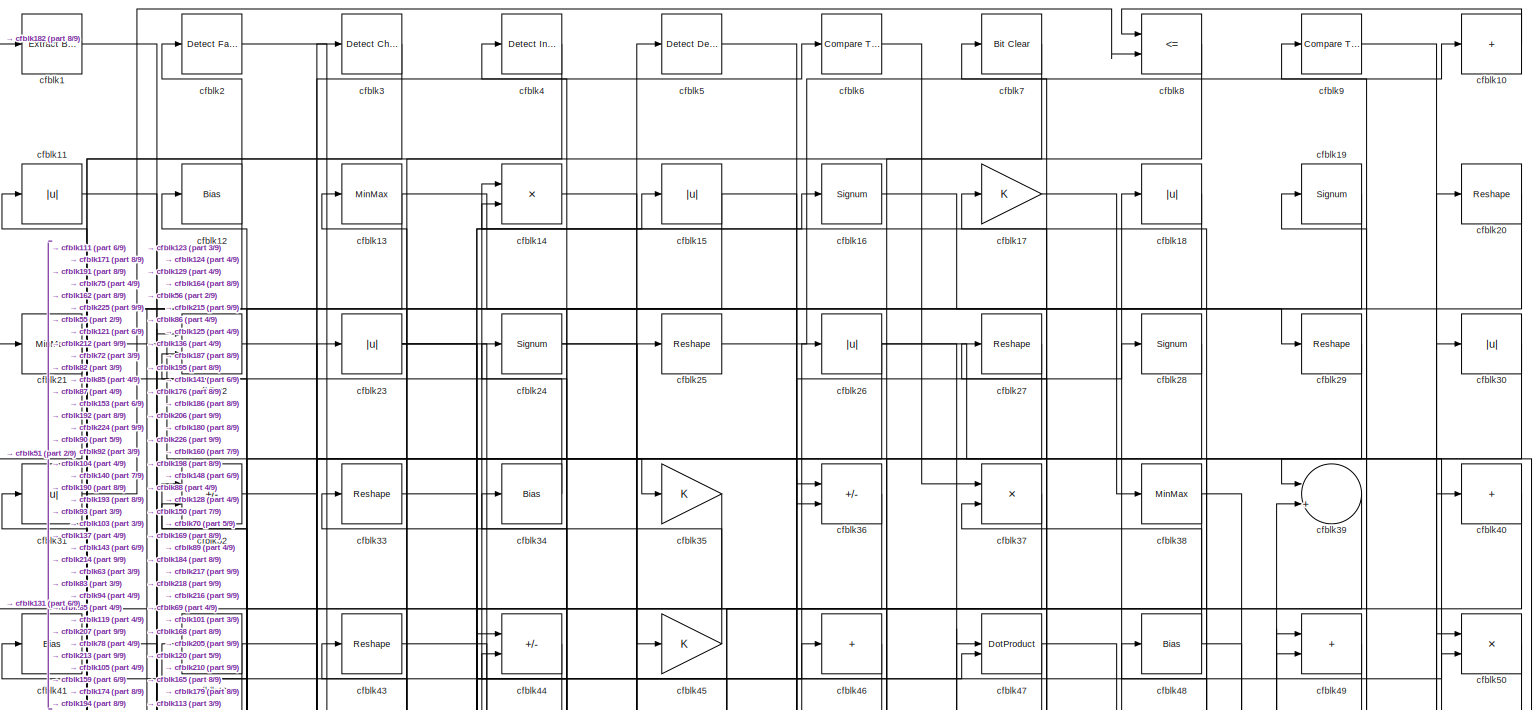
[diagram: root canvas - part 1/9, full width, top band]
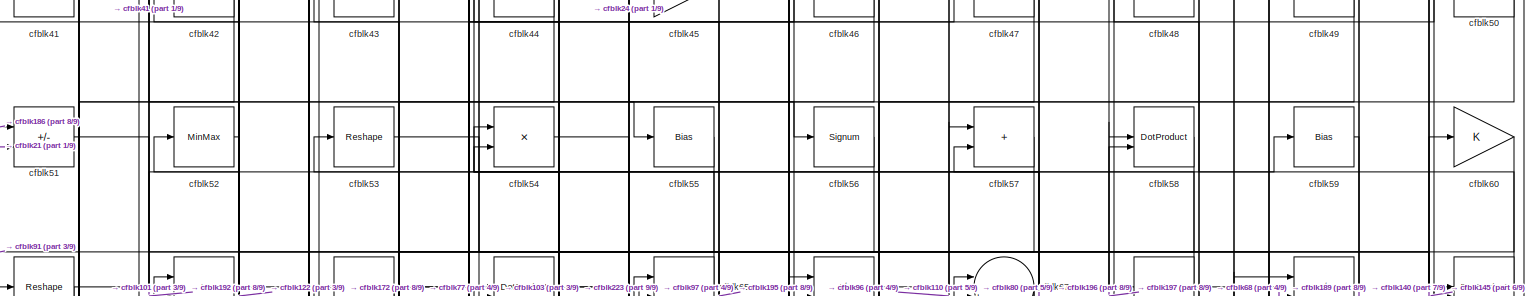
[diagram: root canvas - part 2/9, full width, top band]
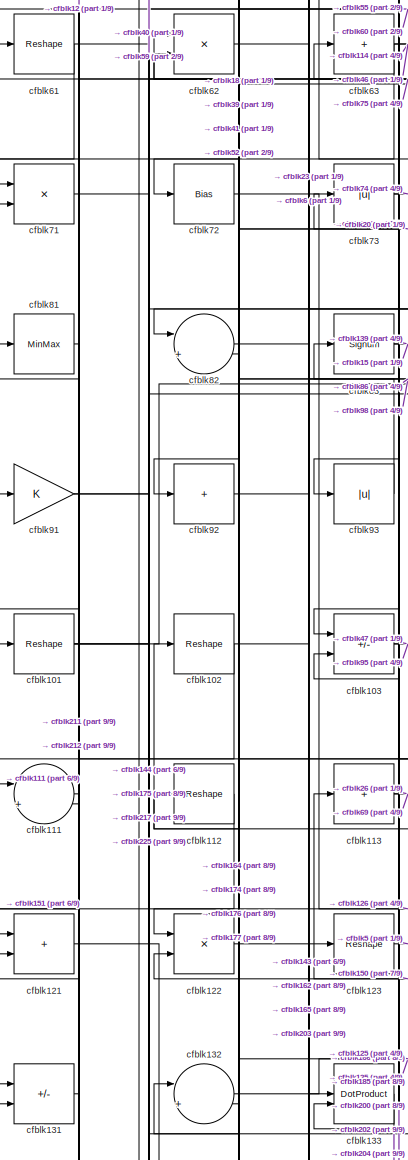
[diagram: root canvas - part 3/9, middle left region]
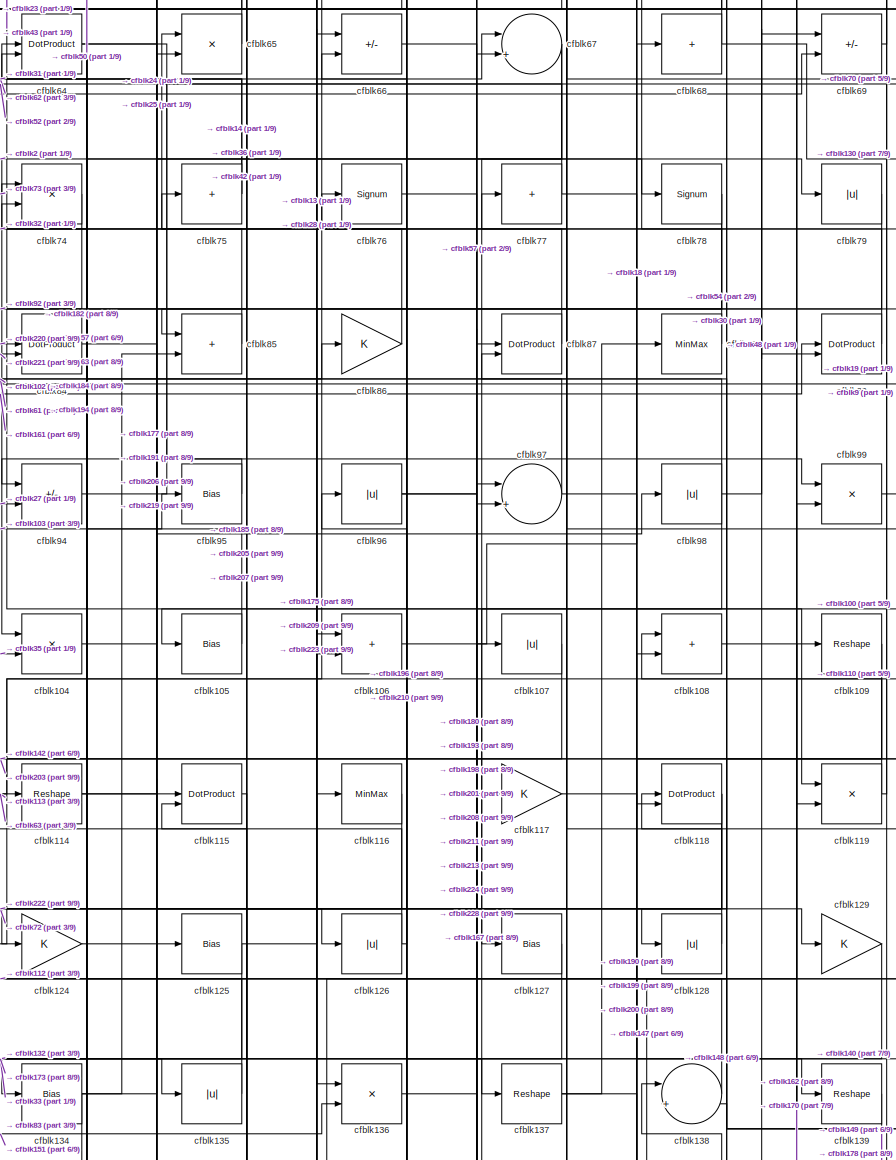
[diagram: root canvas - part 4/9, central region]
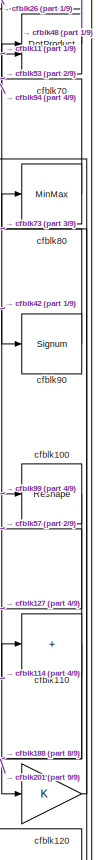
[diagram: root canvas - part 5/9, middle right region]
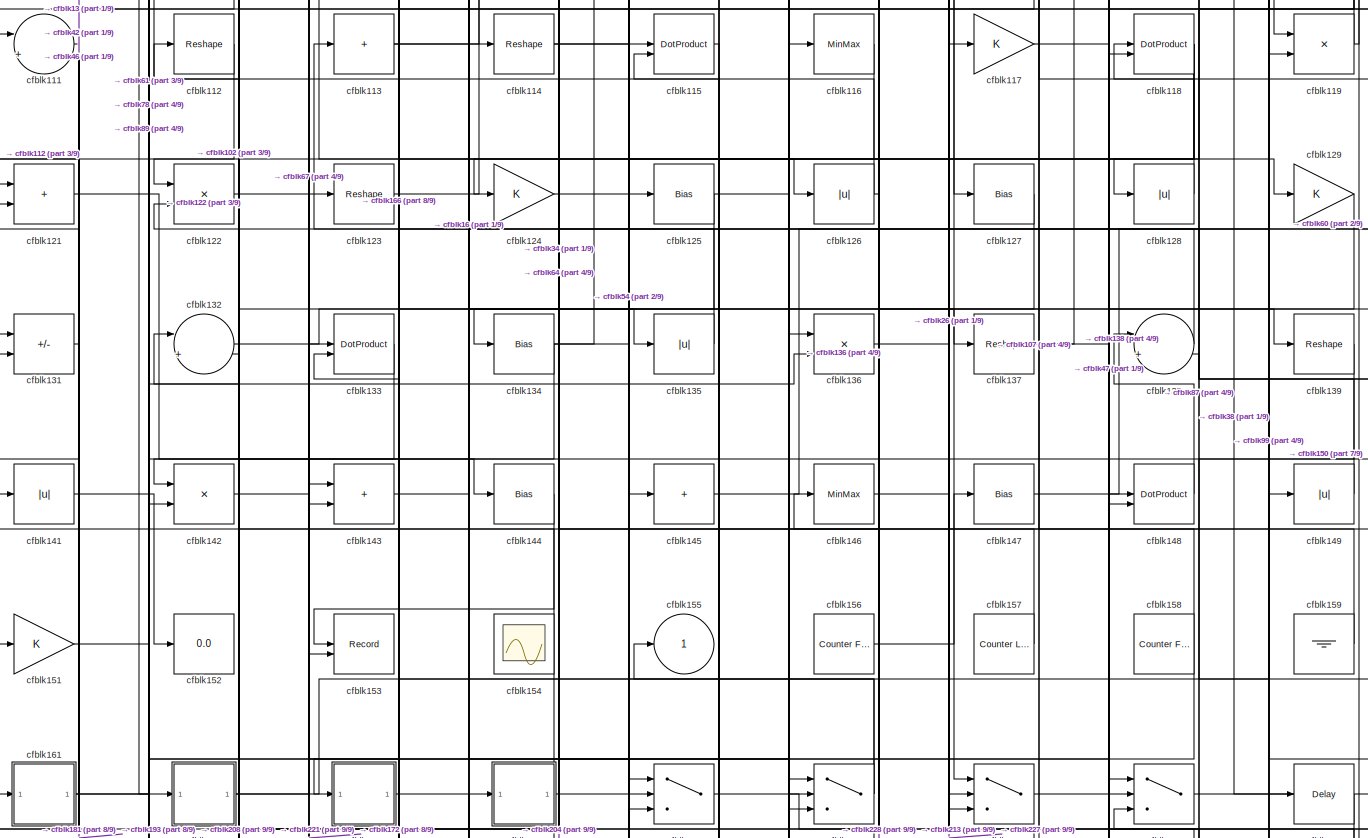
[diagram: root canvas - part 6/9, full width, middle band]
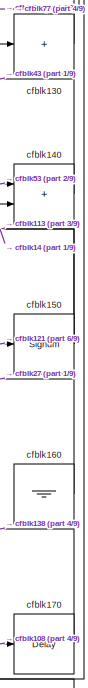
[diagram: root canvas - part 7/9, middle right region]
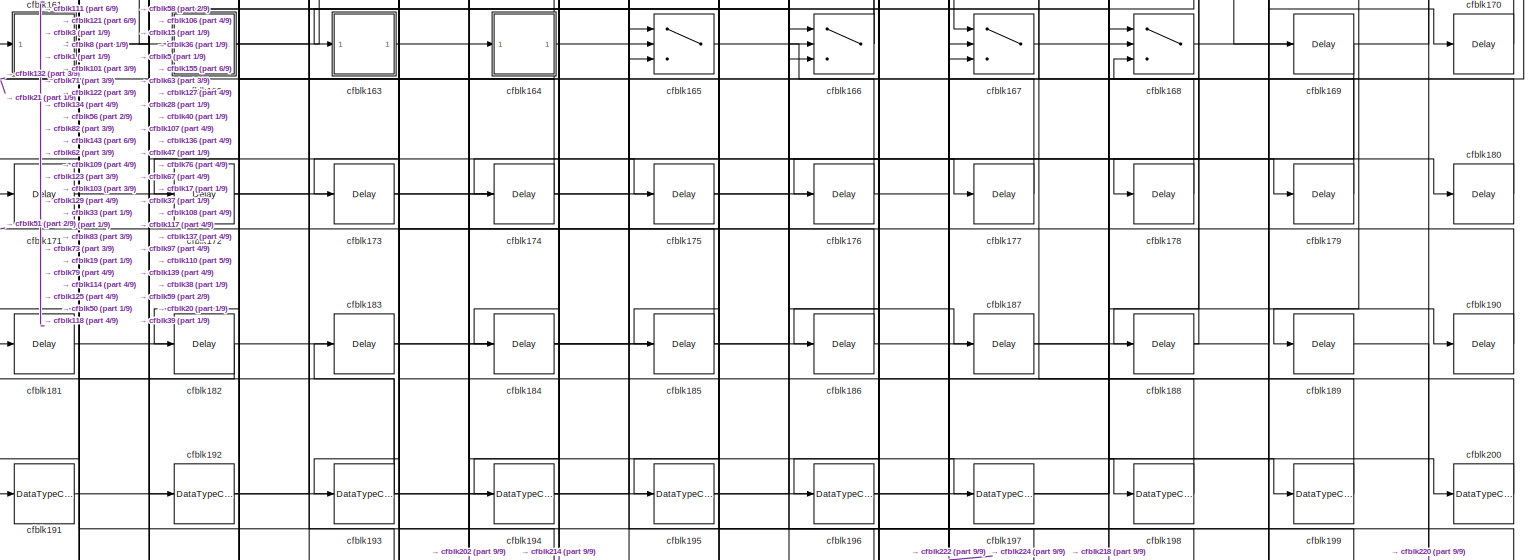
[diagram: root canvas - part 8/9, full width, bottom band]
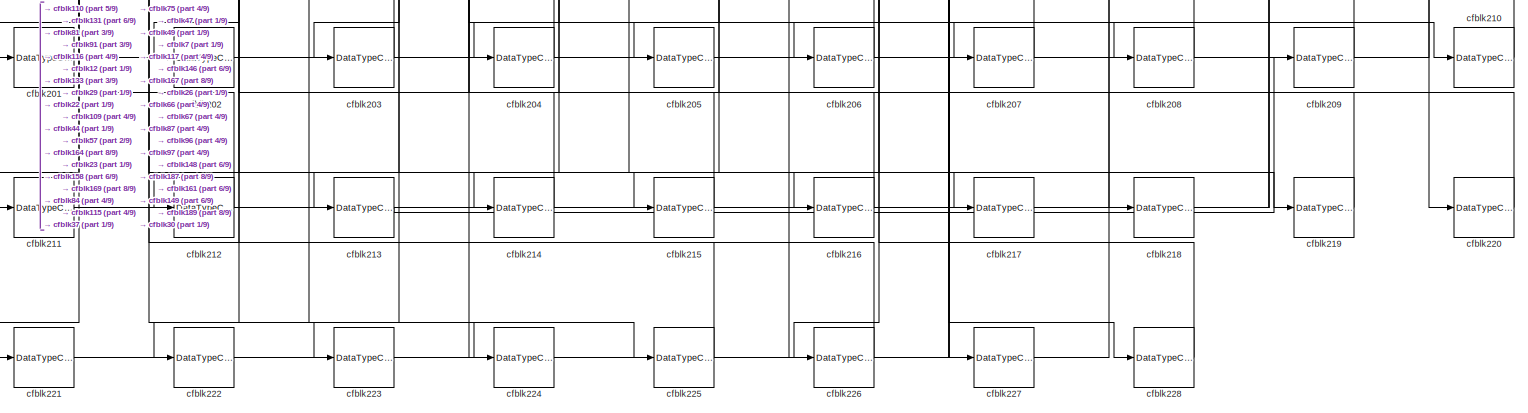
[diagram: root canvas - part 9/9, full width, bottom band]
MODEL slx_664d89747934
KIND model
CONFIG AbsTol = auto
CONFIG EnableMultiTasking = off
CONFIG FixedStep = auto
CONFIG MaxStep = auto
CONFIG MinStep = auto
CONFIG RelTol = 1e-3
CONFIG SampleTimeConstraint = Unconstrained
CONFIG SolverName = VariableStepAuto
CONFIG StartTime = 0.0
CONFIG StopTime = 10.0
BLOCK [Reference] cfblk1  REF=simulink/Logic and Bit
Operations/Extract Bits
  LibrarySourceBlock = hdlsllib/Logic and Bit\nOperations/Extract Bits
  SourceBlock = simulink/Logic and Bit\nOperations/Extract Bits
  SourceType = Extract Bits
BLOCK [Sum] cfblk10
  IconShape = rectangular
  Inputs = +
BLOCK [Reshape] cfblk100
BLOCK [Reshape] cfblk101
BLOCK [Reshape] cfblk102
BLOCK [Sum] cfblk103
  IconShape = rectangular
  Inputs = +-
BLOCK [Product] cfblk104
  Inputs = */
  RndMeth = Zero
  SaturateOnIntegerOverflow = on
BLOCK [Bias] cfblk105
  Bias = 0.0
  SaturateOnIntegerOverflow = off
BLOCK [Sum] cfblk106
  IconShape = rectangular
BLOCK [Abs] cfblk107
  SaturateOnIntegerOverflow = off
BLOCK [Sum] cfblk108
  IconShape = rectangular
BLOCK [Reshape] cfblk109
BLOCK [Abs] cfblk11
  SaturateOnIntegerOverflow = off
BLOCK [Sum] cfblk110
  IconShape = rectangular
  Inputs = +
BLOCK [Sum] cfblk111
  Inputs = |++
BLOCK [Reshape] cfblk112
BLOCK [Sum] cfblk113
  IconShape = rectangular
  Inputs = +
BLOCK [Reshape] cfblk114
BLOCK [DotProduct] cfblk115
  OutDataTypeStr = Inherit: Inherit via internal rule
BLOCK [MinMax] cfblk116
BLOCK [Gain] cfblk117
BLOCK [DotProduct] cfblk118
  OutDataTypeStr = Inherit: Inherit via internal rule
BLOCK [Product] cfblk119
  Inputs = */
  RndMeth = Zero
  SaturateOnIntegerOverflow = on
BLOCK [Bias] cfblk12
  Bias = 0.0
  SaturateOnIntegerOverflow = off
BLOCK [Gain] cfblk120
BLOCK [Sum] cfblk121
  IconShape = rectangular
BLOCK [Product] cfblk122
  Inputs = */
  RndMeth = Zero
  SaturateOnIntegerOverflow = on
BLOCK [Reshape] cfblk123
BLOCK [Gain] cfblk124
BLOCK [Bias] cfblk125
  Bias = 0.0
  SaturateOnIntegerOverflow = off
BLOCK [Abs] cfblk126
  SaturateOnIntegerOverflow = off
BLOCK [Bias] cfblk127
  Bias = 0.0
  SaturateOnIntegerOverflow = off
BLOCK [Abs] cfblk128
  SaturateOnIntegerOverflow = off
BLOCK [Gain] cfblk129
BLOCK [MinMax] cfblk13
BLOCK [Sum] cfblk130
  IconShape = rectangular
  Inputs = +
BLOCK [Sum] cfblk131
  IconShape = rectangular
  Inputs = +-
BLOCK [Sum] cfblk132
  Inputs = |++
BLOCK [DotProduct] cfblk133
  OutDataTypeStr = Inherit: Inherit via internal rule
BLOCK [Bias] cfblk134
  Bias = 0.0
  SaturateOnIntegerOverflow = off
BLOCK [Abs] cfblk135
  SaturateOnIntegerOverflow = off
BLOCK [Product] cfblk136
  Inputs = */
  RndMeth = Zero
  SaturateOnIntegerOverflow = on
BLOCK [Reshape] cfblk137
BLOCK [Sum] cfblk138
  Inputs = |++
BLOCK [Reshape] cfblk139
BLOCK [Product] cfblk14
  Inputs = */
  RndMeth = Zero
  SaturateOnIntegerOverflow = on
BLOCK [Sum] cfblk140
  IconShape = rectangular
BLOCK [Abs] cfblk141
  SaturateOnIntegerOverflow = off
BLOCK [Product] cfblk142
  Inputs = */
  RndMeth = Zero
  SaturateOnIntegerOverflow = on
BLOCK [Sum] cfblk143
  IconShape = rectangular
BLOCK [Bias] cfblk144
  Bias = 0.0
  SaturateOnIntegerOverflow = off
BLOCK [Sum] cfblk145
  IconShape = rectangular
  Inputs = +
BLOCK [MinMax] cfblk146
BLOCK [Bias] cfblk147
  Bias = 0.0
  SaturateOnIntegerOverflow = off
BLOCK [DotProduct] cfblk148
  OutDataTypeStr = Inherit: Inherit via internal rule
BLOCK [Abs] cfblk149
  SaturateOnIntegerOverflow = off
BLOCK [Abs] cfblk15
  SaturateOnIntegerOverflow = off
BLOCK [Signum] cfblk150
BLOCK [Gain] cfblk151
BLOCK [Display] cfblk152
  Decimation = 1
BLOCK [Record] cfblk153
  CompatibilityTag = XY
  FileSettingsInternal = {"entries":[{"content":{"excelSettings":{"content":{},"type":"Streamout.ExcelSettings"}},"type":"Streamout.FileSettingStorage","uuid":""}],"packageUris":["http:\/\/schema.mathworks.com\/mf0\/streamout_blocks\/R2020a"],"version":"1.0"}
  Layout = [1 1]
  SignalsInternal = {"entries":[{"content":{"signals":[{"content":{"blockPath":[],"dimensions":[1],"domain":"","lineColor":"#a2142f","plots":[1],"port":1,"signalID":2764,"signalName":"XY Graph:1"},"type":"RecordBlkView.Signal","uuid":""},{"content":{"blockPath":[],"dimensions":[1],"domain":"","lineColor":"#139fff","plots":[1],"port":2,"signalID":2767,"signalName":"XY Graph:2"},"type":"RecordBlkView.Signal","uuid":""}...<+146ch>
  VisualizationBindings = {"xyplotplugin":{"info":[{"series":[{"bindingParametersList":[{"parameter":"X-Axis","signalID":2764,"signalName":"XY Graph:1"},{"parameter":"Y-Axis","signalID":2767,"signalName":"XY Graph:2"}],"seriesID":48167}],"subplotID":1}]}}
  st = -1
BLOCK [Scope] cfblk154
  Floating = on
  NumInputPorts = 1
  ScopeSpecificationString = Simulink.scopes.TimeScopeBlockCfg('CurrentConfiguration', extmgr.ConfigurationSet(extmgr.Configuration('Core','General UI',true,'FigureColor',[0.156862745098039 0.156862745098039 0.156862745098039]),extmgr.Configuration('Core','Source UI',true),extmgr.Configuration('Sources','WiredSimulink',true,'DataLoggingVariableName','ScopeData1','DataLoggingSaveFormat','StructureWithTime','DataLoggingLimitDat...<+2713ch>
BLOCK [Outport] cfblk155
  VectorParamsAs1DForOutWhenUnconnected = off
BLOCK [Reference] cfblk156  REF=hdlsllib/Sources/Counter
Free-Running
  SourceBlock = hdlsllib/Sources/Counter\nFree-Running
  SourceType = Counter Free-Running
BLOCK [Reference] cfblk157  REF=hdlsllib/Sources/Counter
Limited
  SourceBlock = hdlsllib/Sources/Counter\nLimited
  SourceType = Counter Limited
BLOCK [Reference] cfblk158  REF=hdlsllib/Sources/Counter
Free-Running
  SourceBlock = hdlsllib/Sources/Counter\nFree-Running
  SourceType = Counter Free-Running
BLOCK [Ground] cfblk159
BLOCK [Signum] cfblk16
BLOCK [Ground] cfblk160
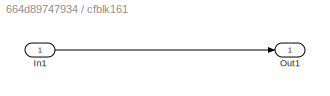
BLOCK [SubSystem] cfblk161
  LibrarySourceBlock = hdlsllib/Ports &\nSubsystems/Subsystem
BLOCK [Inport] cfblk161/In1
BLOCK [Outport] cfblk161/Out1
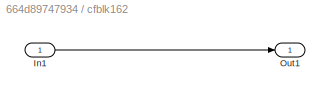
BLOCK [SubSystem] cfblk162
  LibrarySourceBlock = hdlsllib/Ports &\nSubsystems/Subsystem
BLOCK [Inport] cfblk162/In1
BLOCK [Outport] cfblk162/Out1
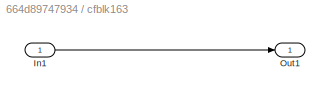
BLOCK [SubSystem] cfblk163
  LibrarySourceBlock = hdlsllib/Ports &\nSubsystems/Subsystem
BLOCK [Inport] cfblk163/In1
BLOCK [Outport] cfblk163/Out1
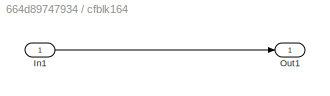
BLOCK [SubSystem] cfblk164
  LibrarySourceBlock = hdlsllib/Ports &\nSubsystems/Subsystem
BLOCK [Inport] cfblk164/In1
BLOCK [Outport] cfblk164/Out1
BLOCK [Switch] cfblk165
  InputSameDT = off
  SaturateOnIntegerOverflow = off
BLOCK [Switch] cfblk166
  InputSameDT = off
  SaturateOnIntegerOverflow = off
BLOCK [Switch] cfblk167
  InputSameDT = off
  SaturateOnIntegerOverflow = off
BLOCK [Switch] cfblk168
  InputSameDT = off
  SaturateOnIntegerOverflow = off
BLOCK [Delay] cfblk169
  InputPortMap = u0
  SampleTime = 1
BLOCK [Gain] cfblk17
BLOCK [Delay] cfblk170
  InputPortMap = u0
  SampleTime = 1
BLOCK [Delay] cfblk171
  InputPortMap = u0
  SampleTime = 1
BLOCK [Delay] cfblk172
  InputPortMap = u0
  SampleTime = 1
BLOCK [Delay] cfblk173
  InputPortMap = u0
  SampleTime = 1
BLOCK [Delay] cfblk174
  InputPortMap = u0
  SampleTime = 1
BLOCK [Delay] cfblk175
  InputPortMap = u0
  SampleTime = 1
BLOCK [Delay] cfblk176
  InputPortMap = u0
  SampleTime = 1
BLOCK [Delay] cfblk177
  InputPortMap = u0
  SampleTime = 1
BLOCK [Delay] cfblk178
  InputPortMap = u0
  SampleTime = 1
BLOCK [Delay] cfblk179
  InputPortMap = u0
  SampleTime = 1
BLOCK [Abs] cfblk18
  SaturateOnIntegerOverflow = off
BLOCK [Delay] cfblk180
  InputPortMap = u0
  SampleTime = 1
BLOCK [Delay] cfblk181
  InputPortMap = u0
  SampleTime = 1
BLOCK [Delay] cfblk182
  InputPortMap = u0
  SampleTime = 1
BLOCK [Delay] cfblk183
  InputPortMap = u0
  SampleTime = 1
BLOCK [Delay] cfblk184
  InputPortMap = u0
  SampleTime = 1
BLOCK [Delay] cfblk185
  InputPortMap = u0
  SampleTime = 1
BLOCK [Delay] cfblk186
  InputPortMap = u0
  SampleTime = 1
BLOCK [Delay] cfblk187
  InputPortMap = u0
  SampleTime = 1
BLOCK [Delay] cfblk188
  InputPortMap = u0
  SampleTime = 1
BLOCK [Delay] cfblk189
  InputPortMap = u0
  SampleTime = 1
BLOCK [Signum] cfblk19
BLOCK [Delay] cfblk190
  InputPortMap = u0
  SampleTime = 1
BLOCK [DataTypeConversion] cfblk191
  OutDataTypeStr = uint8
  RndMeth = Floor
  SaturateOnIntegerOverflow = off
BLOCK [DataTypeConversion] cfblk192
  OutDataTypeStr = uint8
  RndMeth = Floor
  SaturateOnIntegerOverflow = off
BLOCK [DataTypeConversion] cfblk193
  RndMeth = Floor
  SaturateOnIntegerOverflow = off
BLOCK [DataTypeConversion] cfblk194
  OutDataTypeStr = uint8
  RndMeth = Floor
  SaturateOnIntegerOverflow = off
BLOCK [DataTypeConversion] cfblk195
  OutDataTypeStr = uint8
  RndMeth = Floor
  SaturateOnIntegerOverflow = off
BLOCK [DataTypeConversion] cfblk196
  OutDataTypeStr = uint8
  RndMeth = Floor
  SaturateOnIntegerOverflow = off
BLOCK [DataTypeConversion] cfblk197
  OutDataTypeStr = uint8
  RndMeth = Floor
  SaturateOnIntegerOverflow = off
BLOCK [DataTypeConversion] cfblk198
  OutDataTypeStr = uint8
  RndMeth = Floor
  SaturateOnIntegerOverflow = off
BLOCK [DataTypeConversion] cfblk199
  OutDataTypeStr = uint8
  RndMeth = Floor
  SaturateOnIntegerOverflow = off
BLOCK [Reference] cfblk2  REF=hdlsllib/Logic and Bit
Operations/Detect Fall
Nonpositive
  SourceBlock = hdlsllib/Logic and Bit\nOperations/Detect Fall\nNonpositive
  SourceType = Detect Fall Nonpositive
BLOCK [Reshape] cfblk20
BLOCK [DataTypeConversion] cfblk200
  OutDataTypeStr = uint8
  RndMeth = Floor
  SaturateOnIntegerOverflow = off
BLOCK [DataTypeConversion] cfblk201
  OutDataTypeStr = uint8
  RndMeth = Floor
  SaturateOnIntegerOverflow = off
BLOCK [DataTypeConversion] cfblk202
  OutDataTypeStr = uint8
  RndMeth = Floor
  SaturateOnIntegerOverflow = off
BLOCK [DataTypeConversion] cfblk203
  OutDataTypeStr = uint8
  RndMeth = Floor
  SaturateOnIntegerOverflow = off
BLOCK [DataTypeConversion] cfblk204
  OutDataTypeStr = uint8
  RndMeth = Floor
  SaturateOnIntegerOverflow = off
BLOCK [DataTypeConversion] cfblk205
  OutDataTypeStr = uint8
  RndMeth = Floor
  SaturateOnIntegerOverflow = off
BLOCK [DataTypeConversion] cfblk206
  OutDataTypeStr = uint8
  RndMeth = Floor
  SaturateOnIntegerOverflow = off
BLOCK [DataTypeConversion] cfblk207
  OutDataTypeStr = uint8
  RndMeth = Floor
  SaturateOnIntegerOverflow = off
BLOCK [DataTypeConversion] cfblk208
  OutDataTypeStr = uint8
  RndMeth = Floor
  SaturateOnIntegerOverflow = off
BLOCK [DataTypeConversion] cfblk209
  OutDataTypeStr = uint8
  RndMeth = Floor
  SaturateOnIntegerOverflow = off
BLOCK [MinMax] cfblk21
BLOCK [DataTypeConversion] cfblk210
  OutDataTypeStr = uint8
  RndMeth = Floor
  SaturateOnIntegerOverflow = off
BLOCK [DataTypeConversion] cfblk211
  OutDataTypeStr = uint8
  RndMeth = Floor
  SaturateOnIntegerOverflow = off
BLOCK [DataTypeConversion] cfblk212
  OutDataTypeStr = uint8
  RndMeth = Floor
  SaturateOnIntegerOverflow = off
BLOCK [DataTypeConversion] cfblk213
  RndMeth = Floor
  SaturateOnIntegerOverflow = off
BLOCK [DataTypeConversion] cfblk214
  OutDataTypeStr = uint8
  RndMeth = Floor
  SaturateOnIntegerOverflow = off
BLOCK [DataTypeConversion] cfblk215
  OutDataTypeStr = uint8
  RndMeth = Floor
  SaturateOnIntegerOverflow = off
BLOCK [DataTypeConversion] cfblk216
  OutDataTypeStr = uint8
  RndMeth = Floor
  SaturateOnIntegerOverflow = off
BLOCK [DataTypeConversion] cfblk217
  OutDataTypeStr = uint8
  RndMeth = Floor
  SaturateOnIntegerOverflow = off
BLOCK [DataTypeConversion] cfblk218
  OutDataTypeStr = uint8
  RndMeth = Floor
  SaturateOnIntegerOverflow = off
BLOCK [DataTypeConversion] cfblk219
  OutDataTypeStr = uint8
  RndMeth = Floor
  SaturateOnIntegerOverflow = off
BLOCK [Sum] cfblk22
  IconShape = rectangular
BLOCK [DataTypeConversion] cfblk220
  OutDataTypeStr = uint8
  RndMeth = Floor
  SaturateOnIntegerOverflow = off
BLOCK [DataTypeConversion] cfblk221
  OutDataTypeStr = uint8
  RndMeth = Floor
  SaturateOnIntegerOverflow = off
BLOCK [DataTypeConversion] cfblk222
  OutDataTypeStr = uint8
  RndMeth = Floor
  SaturateOnIntegerOverflow = off
BLOCK [DataTypeConversion] cfblk223
  OutDataTypeStr = uint8
  RndMeth = Floor
  SaturateOnIntegerOverflow = off
BLOCK [DataTypeConversion] cfblk224
  RndMeth = Floor
  SaturateOnIntegerOverflow = off
BLOCK [DataTypeConversion] cfblk225
  OutDataTypeStr = uint8
  RndMeth = Floor
  SaturateOnIntegerOverflow = off
BLOCK [DataTypeConversion] cfblk226
  OutDataTypeStr = uint8
  RndMeth = Floor
  SaturateOnIntegerOverflow = off
BLOCK [DataTypeConversion] cfblk227
  OutDataTypeStr = uint8
  RndMeth = Floor
  SaturateOnIntegerOverflow = off
BLOCK [DataTypeConversion] cfblk228
  OutDataTypeStr = uint8
  RndMeth = Floor
  SaturateOnIntegerOverflow = off
BLOCK [Abs] cfblk23
  SaturateOnIntegerOverflow = off
BLOCK [Signum] cfblk24
BLOCK [Reshape] cfblk25
BLOCK [Abs] cfblk26
  SaturateOnIntegerOverflow = off
BLOCK [Reshape] cfblk27
BLOCK [Signum] cfblk28
BLOCK [Reshape] cfblk29
BLOCK [Reference] cfblk3  REF=simulink/Logic and Bit
Operations/Detect
Change
  LibrarySourceBlock = hdlsllib/Logic and Bit\nOperations/Detect\nChange
  SourceBlock = simulink/Logic and Bit\nOperations/Detect\nChange
  SourceType = Detect Change
BLOCK [Abs] cfblk30
  SaturateOnIntegerOverflow = off
BLOCK [Abs] cfblk31
  SaturateOnIntegerOverflow = off
BLOCK [Sum] cfblk32
  IconShape = rectangular
  Inputs = +-
BLOCK [Reshape] cfblk33
BLOCK [Bias] cfblk34
  Bias = 0.0
  SaturateOnIntegerOverflow = off
BLOCK [Gain] cfblk35
BLOCK [Sum] cfblk36
  IconShape = rectangular
  Inputs = +-
BLOCK [Product] cfblk37
  Inputs = */
  RndMeth = Zero
  SaturateOnIntegerOverflow = on
BLOCK [MinMax] cfblk38
BLOCK [Sum] cfblk39
  Inputs = |++
BLOCK [Reference] cfblk4  REF=simulink/Logic and Bit
Operations/Detect
Increase
  LibrarySourceBlock = hdlsllib/Logic and Bit\nOperations/Detect\nIncrease
  SourceBlock = simulink/Logic and Bit\nOperations/Detect\nIncrease
  SourceType = Detect Increase
BLOCK [Sum] cfblk40
  IconShape = rectangular
  Inputs = +
BLOCK [Bias] cfblk41
  Bias = 0.0
  SaturateOnIntegerOverflow = off
BLOCK [Bias] cfblk42
  Bias = 0.0
  SaturateOnIntegerOverflow = off
BLOCK [Reshape] cfblk43
BLOCK [Sum] cfblk44
  IconShape = rectangular
  Inputs = +-
BLOCK [Gain] cfblk45
BLOCK [Sum] cfblk46
  IconShape = rectangular
  Inputs = +
BLOCK [DotProduct] cfblk47
  OutDataTypeStr = Inherit: Inherit via internal rule
BLOCK [Bias] cfblk48
  Bias = 0.0
  SaturateOnIntegerOverflow = off
BLOCK [Sum] cfblk49
  IconShape = rectangular
BLOCK [Reference] cfblk5  REF=simulink/Logic and Bit
Operations/Detect
Decrease
  LibrarySourceBlock = hdlsllib/Logic and Bit\nOperations/Detect\nDecrease
  SourceBlock = simulink/Logic and Bit\nOperations/Detect\nDecrease
  SourceType = Detect Decrease
BLOCK [Product] cfblk50
  Inputs = */
  RndMeth = Zero
  SaturateOnIntegerOverflow = on
BLOCK [Sum] cfblk51
  IconShape = rectangular
  Inputs = +-
BLOCK [MinMax] cfblk52
BLOCK [Reshape] cfblk53
BLOCK [Product] cfblk54
  Inputs = */
  RndMeth = Zero
  SaturateOnIntegerOverflow = on
BLOCK [Bias] cfblk55
  Bias = 0.0
  SaturateOnIntegerOverflow = off
BLOCK [Signum] cfblk56
BLOCK [Sum] cfblk57
  IconShape = rectangular
BLOCK [DotProduct] cfblk58
  OutDataTypeStr = Inherit: Inherit via internal rule
BLOCK [Bias] cfblk59
  Bias = 0.0
  SaturateOnIntegerOverflow = off
BLOCK [Reference] cfblk6  REF=hdlsllib/Logic and Bit
Operations/Compare
To Constant
  SourceBlock = hdlsllib/Logic and Bit\nOperations/Compare\nTo Constant
  SourceType = Compare To Constant
BLOCK [Gain] cfblk60
BLOCK [Reshape] cfblk61
BLOCK [Product] cfblk62
  Inputs = */
  RndMeth = Zero
  SaturateOnIntegerOverflow = on
BLOCK [Sum] cfblk63
  IconShape = rectangular
  Inputs = +
BLOCK [DotProduct] cfblk64
  OutDataTypeStr = Inherit: Inherit via internal rule
BLOCK [Product] cfblk65
  Inputs = */
  RndMeth = Zero
  SaturateOnIntegerOverflow = on
BLOCK [Sum] cfblk66
  IconShape = rectangular
  Inputs = +-
BLOCK [Sum] cfblk67
  Inputs = |++
BLOCK [Sum] cfblk68
  IconShape = rectangular
  Inputs = +
BLOCK [Sum] cfblk69
  IconShape = rectangular
  Inputs = +-
BLOCK [Reference] cfblk7  REF=simulink/Logic and Bit
Operations/Bit Clear
  LibrarySourceBlock = hdlsllib/Logic and Bit\nOperations/Bit Clear
  SourceBlock = simulink/Logic and Bit\nOperations/Bit Clear
  SourceType = Bit Clear
BLOCK [DotProduct] cfblk70
  OutDataTypeStr = Inherit: Inherit via internal rule
BLOCK [Product] cfblk71
  Inputs = */
  RndMeth = Zero
  SaturateOnIntegerOverflow = on
BLOCK [Bias] cfblk72
  Bias = 0.0
  SaturateOnIntegerOverflow = off
BLOCK [Abs] cfblk73
  SaturateOnIntegerOverflow = off
BLOCK [Product] cfblk74
  Inputs = */
  RndMeth = Zero
  SaturateOnIntegerOverflow = on
BLOCK [Sum] cfblk75
  IconShape = rectangular
  Inputs = +
BLOCK [Signum] cfblk76
BLOCK [Sum] cfblk77
  IconShape = rectangular
  Inputs = +
BLOCK [Signum] cfblk78
BLOCK [Abs] cfblk79
  SaturateOnIntegerOverflow = off
BLOCK [RelationalOperator] cfblk8
  InputSameDT = off
  Operator = <=
  OutDataTypeStr = boolean
BLOCK [MinMax] cfblk80
BLOCK [MinMax] cfblk81
BLOCK [Sum] cfblk82
  Inputs = |++
BLOCK [Signum] cfblk83
BLOCK [DotProduct] cfblk84
  OutDataTypeStr = Inherit: Inherit via internal rule
BLOCK [Sum] cfblk85
  IconShape = rectangular
BLOCK [Gain] cfblk86
BLOCK [DotProduct] cfblk87
  OutDataTypeStr = Inherit: Inherit via internal rule
BLOCK [MinMax] cfblk88
BLOCK [DotProduct] cfblk89
  OutDataTypeStr = Inherit: Inherit via internal rule
BLOCK [Reference] cfblk9  REF=hdlsllib/Logic and Bit
Operations/Compare
To Zero
  SourceBlock = hdlsllib/Logic and Bit\nOperations/Compare\nTo Zero
  SourceType = Compare To Zero
BLOCK [Signum] cfblk90
BLOCK [Gain] cfblk91
BLOCK [Sum] cfblk92
  IconShape = rectangular
  Inputs = +
BLOCK [Abs] cfblk93
  SaturateOnIntegerOverflow = off
BLOCK [Sum] cfblk94
  IconShape = rectangular
  Inputs = +-
BLOCK [Bias] cfblk95
  Bias = 0.0
  SaturateOnIntegerOverflow = off
BLOCK [Abs] cfblk96
  SaturateOnIntegerOverflow = off
BLOCK [Sum] cfblk97
  Inputs = |++
BLOCK [Abs] cfblk98
  SaturateOnIntegerOverflow = off
BLOCK [Product] cfblk99
  Inputs = */
  RndMeth = Zero
  SaturateOnIntegerOverflow = on
LINE cfblk100:1 -> cfblk127:1
NET cfblk101:1 -> cfblk166:2, cfblk40:1, cfblk59:1
NET cfblk102:1 -> cfblk111:1, cfblk86:1
NET cfblk103:1 -> cfblk47:2, cfblk95:1
LINE cfblk104:1 -> cfblk98:1
LINE cfblk105:1 -> cfblk24:1
LINE cfblk106:1 -> cfblk68:1
LINE cfblk107:1 -> cfblk142:1
LINE cfblk108:1 -> cfblk170:1
NET cfblk109:1 -> cfblk118:2, cfblk203:1
LINE cfblk10:1 -> cfblk8:1
NET cfblk110:1 -> cfblk188:1, cfblk201:1, cfblk57:2
LINE cfblk111:1 -> cfblk181:1
LINE cfblk112:1 -> cfblk151:1
NET cfblk113:1 -> cfblk26:1, cfblk69:2
NET cfblk114:1 -> cfblk110:1, cfblk177:1
LINE cfblk115:1 -> cfblk205:1
LINE cfblk116:1 -> cfblk222:1
LINE cfblk117:1 -> cfblk200:1
NET cfblk118:1 -> cfblk163:1, cfblk185:1, cfblk194:1
NET cfblk119:1 -> cfblk108:1, cfblk9:1
LINE cfblk11:1 -> cfblk70:2
LINE cfblk120:1 -> cfblk80:1
LINE cfblk121:1 -> cfblk150:1
LINE cfblk122:1 -> cfblk143:2
LINE cfblk123:1 -> cfblk5:1
LINE cfblk124:1 -> cfblk25:1
NET cfblk125:1 -> cfblk132:2, cfblk28:1
NET cfblk126:1 -> cfblk102:1, cfblk96:1
LINE cfblk127:1 -> cfblk196:1
LINE cfblk128:1 -> cfblk118:1
LINE cfblk129:1 -> cfblk173:1
NET cfblk12:1 -> cfblk101:1, cfblk2:1
LINE cfblk130:1 -> cfblk77:1
LINE cfblk131:1 -> cfblk221:1
LINE cfblk132:1 -> cfblk135:1
LINE cfblk133:1 -> cfblk202:1
NET cfblk134:1 -> cfblk182:1, cfblk65:2, cfblk85:2
LINE cfblk135:1 -> cfblk112:1
LINE cfblk136:1 -> cfblk180:1
NET cfblk137:1 -> cfblk190:1, cfblk88:1
LINE cfblk138:1 -> cfblk74:2
LINE cfblk139:1 -> cfblk178:1
NET cfblk13:1 -> cfblk111:2, cfblk136:1
LINE cfblk140:1 -> cfblk43:1
LINE cfblk141:1 -> cfblk152:1
LINE cfblk142:1 -> cfblk67:1
LINE cfblk143:1 -> cfblk16:1
LINE cfblk144:1 -> cfblk153:1
LINE cfblk145:1 -> cfblk60:1
LINE cfblk146:1 -> cfblk227:1
LINE cfblk147:1 -> cfblk99:2
LINE cfblk148:1 -> cfblk138:1
LINE cfblk149:1 -> cfblk87:2
LINE cfblk14:1 -> cfblk45:1
NET cfblk150:1 -> cfblk113:1, cfblk14:2
LINE cfblk151:1 -> cfblk136:2
LINE cfblk156:1 -> cfblk147:1
LINE cfblk157:1 -> cfblk64:1
NET cfblk158:1 -> cfblk131:1, cfblk204:1
LINE cfblk159:1 -> cfblk34:1
NET cfblk15:1 -> cfblk162:1, cfblk187:1
LINE cfblk160:1 -> cfblk27:1
LINE cfblk161/In1:1 -> cfblk161/Out1:1
NET cfblk161:1 -> cfblk64:2, cfblk89:1
LINE cfblk162/In1:1 -> cfblk162/Out1:1
NET cfblk162:1 -> cfblk109:1, cfblk123:1
LINE cfblk163/In1:1 -> cfblk163/Out1:1
LINE cfblk163:1 -> cfblk197:1
LINE cfblk164/In1:1 -> cfblk164/Out1:1
NET cfblk164:1 -> cfblk132:1, cfblk21:1, cfblk50:2
LINE cfblk165:1 -> cfblk39:1
NET cfblk166:1 -> cfblk155:1, cfblk63:1
LINE cfblk167:1 -> cfblk108:2
LINE cfblk168:1 -> cfblk20:1
LINE cfblk169:1 -> cfblk214:1
LINE cfblk16:1 -> cfblk29:1
LINE cfblk170:1 -> cfblk138:2
LINE cfblk171:1 -> cfblk165:1
LINE cfblk172:1 -> cfblk143:1
LINE cfblk173:1 -> cfblk97:2
LINE cfblk174:1 -> cfblk122:2
LINE cfblk175:1 -> cfblk106:1
LINE cfblk176:1 -> cfblk62:2
LINE cfblk177:1 -> cfblk82:2
LINE cfblk178:1 -> cfblk168:1
LINE cfblk179:1 -> cfblk37:2
LINE cfblk17:1 -> cfblk38:1
LINE cfblk180:1 -> cfblk47:1
LINE cfblk181:1 -> cfblk165:3
LINE cfblk182:1 -> cfblk1:1
LINE cfblk183:1 -> cfblk166:1
LINE cfblk184:1 -> cfblk39:2
LINE cfblk185:1 -> cfblk103:2
LINE cfblk186:1 -> cfblk51:1
LINE cfblk187:1 -> cfblk218:1
LINE cfblk188:1 -> cfblk168:3
LINE cfblk189:1 -> cfblk220:1
LINE cfblk18:1 -> cfblk72:1
LINE cfblk190:1 -> cfblk33:1
LINE cfblk191:1 -> cfblk125:1
LINE cfblk192:1 -> cfblk3:1
NET cfblk193:1 -> cfblk107:1, cfblk121:2, cfblk183:1
LINE cfblk194:1 -> cfblk4:1
LINE cfblk195:1 -> cfblk36:1
LINE cfblk196:1 -> cfblk58:1
LINE cfblk197:1 -> cfblk58:2
LINE cfblk198:1 -> cfblk17:1
LINE cfblk199:1 -> cfblk76:1
LINE cfblk19:1 -> cfblk174:1
LINE cfblk1:1 -> cfblk168:2
LINE cfblk200:1 -> cfblk83:1
LINE cfblk201:1 -> cfblk117:1
LINE cfblk202:1 -> cfblk164:1
LINE cfblk203:1 -> cfblk133:1
LINE cfblk204:1 -> cfblk133:2
LINE cfblk205:1 -> cfblk30:1
LINE cfblk206:1 -> cfblk115:1
LINE cfblk207:1 -> cfblk115:2
LINE cfblk208:1 -> cfblk161:1
LINE cfblk209:1 -> cfblk66:1
LINE cfblk20:1 -> cfblk93:1
LINE cfblk210:1 -> cfblk66:2
LINE cfblk211:1 -> cfblk87:1
LINE cfblk212:1 -> cfblk81:1
NET cfblk213:1 -> cfblk149:1, cfblk209:1, cfblk97:1
LINE cfblk214:1 -> cfblk44:1
LINE cfblk215:1 -> cfblk44:2
LINE cfblk216:1 -> cfblk12:1
LINE cfblk217:1 -> cfblk49:1
LINE cfblk218:1 -> cfblk49:2
LINE cfblk219:1 -> cfblk75:1
NET cfblk21:1 -> cfblk36:2, cfblk51:2
LINE cfblk220:1 -> cfblk84:1
LINE cfblk221:1 -> cfblk84:2
LINE cfblk222:1 -> cfblk167:2
LINE cfblk223:1 -> cfblk116:1
NET cfblk224:1 -> cfblk167:3, cfblk67:2
LINE cfblk225:1 -> cfblk22:1
LINE cfblk226:1 -> cfblk22:2
LINE cfblk227:1 -> cfblk148:2
LINE cfblk228:1 -> cfblk146:1
LINE cfblk22:1 -> cfblk224:1
NET cfblk23:1 -> cfblk119:1, cfblk207:1, cfblk78:1
NET cfblk24:1 -> cfblk129:1, cfblk56:1
LINE cfblk25:1 -> cfblk10:1
NET cfblk26:1 -> cfblk120:1, cfblk153:2, cfblk210:1
LINE cfblk27:1 -> cfblk94:2
LINE cfblk28:1 -> cfblk186:1
LINE cfblk29:1 -> cfblk212:1
LINE cfblk2:1 -> cfblk104:1
LINE cfblk30:1 -> cfblk128:1
LINE cfblk31:1 -> cfblk8:2
LINE cfblk32:1 -> cfblk35:1
LINE cfblk33:1 -> cfblk137:1
LINE cfblk34:1 -> cfblk11:1
LINE cfblk35:1 -> cfblk104:2
LINE cfblk36:1 -> cfblk85:1
LINE cfblk37:1 -> cfblk215:1
NET cfblk38:1 -> cfblk131:2, cfblk169:1
LINE cfblk39:1 -> cfblk82:1
LINE cfblk3:1 -> cfblk191:1
LINE cfblk40:1 -> cfblk176:1
LINE cfblk41:1 -> cfblk55:1
NET cfblk42:1 -> cfblk121:1, cfblk90:1
LINE cfblk43:1 -> cfblk119:2
LINE cfblk44:1 -> cfblk213:1
LINE cfblk45:1 -> cfblk13:1
LINE cfblk46:1 -> cfblk141:1
NET cfblk47:1 -> cfblk148:1, cfblk226:1
NET cfblk48:1 -> cfblk7:1, cfblk89:2
LINE cfblk49:1 -> cfblk216:1
LINE cfblk4:1 -> cfblk193:1
LINE cfblk50:1 -> cfblk124:1
LINE cfblk51:1 -> cfblk192:1
LINE cfblk52:1 -> cfblk122:1
LINE cfblk53:1 -> cfblk140:1
LINE cfblk54:1 -> cfblk145:1
LINE cfblk55:1 -> cfblk103:1
LINE cfblk56:1 -> cfblk172:1
LINE cfblk57:1 -> cfblk223:1
LINE cfblk58:1 -> cfblk195:1
LINE cfblk59:1 -> cfblk189:1
LINE cfblk5:1 -> cfblk179:1
LINE cfblk60:1 -> cfblk91:1
NET cfblk61:1 -> cfblk144:1, cfblk71:1
LINE cfblk62:1 -> cfblk165:2
NET cfblk63:1 -> cfblk114:1, cfblk46:1, cfblk71:2
NET cfblk64:1 -> cfblk79:1, cfblk99:1
LINE cfblk65:1 -> cfblk14:1
LINE cfblk66:1 -> cfblk208:1
NET cfblk67:1 -> cfblk134:1, cfblk167:1
NET cfblk68:1 -> cfblk130:1, cfblk54:1
LINE cfblk69:1 -> cfblk19:1
LINE cfblk6:1 -> cfblk37:1
LINE cfblk70:1 -> cfblk48:1
LINE cfblk71:1 -> cfblk175:1
LINE cfblk72:1 -> cfblk126:1
NET cfblk73:1 -> cfblk166:3, cfblk74:1
LINE cfblk74:1 -> cfblk92:1
NET cfblk75:1 -> cfblk31:1, cfblk62:1
LINE cfblk76:1 -> cfblk198:1
NET cfblk77:1 -> cfblk140:2, cfblk52:1
NET cfblk78:1 -> cfblk106:2, cfblk142:2
LINE cfblk79:1 -> cfblk184:1
LINE cfblk7:1 -> cfblk206:1
LINE cfblk80:1 -> cfblk53:1
LINE cfblk81:1 -> cfblk211:1
LINE cfblk82:1 -> cfblk23:1
NET cfblk83:1 -> cfblk139:1, cfblk15:1
LINE cfblk84:1 -> cfblk219:1
LINE cfblk85:1 -> cfblk32:1
LINE cfblk86:1 -> cfblk42:1
LINE cfblk87:1 -> cfblk32:2
LINE cfblk88:1 -> cfblk18:1
LINE cfblk89:1 -> cfblk65:1
LINE cfblk8:1 -> cfblk171:1
LINE cfblk90:1 -> cfblk73:1
NET cfblk91:1 -> cfblk217:1, cfblk225:1
LINE cfblk92:1 -> cfblk6:1
LINE cfblk93:1 -> cfblk41:1
LINE cfblk94:1 -> cfblk70:1
LINE cfblk95:1 -> cfblk94:1
NET cfblk96:1 -> cfblk228:1, cfblk57:1
NET cfblk97:1 -> cfblk199:1, cfblk54:2
NET cfblk98:1 -> cfblk105:1, cfblk61:1, cfblk69:1
LINE cfblk99:1 -> cfblk100:1
LINE cfblk9:1 -> cfblk50:1
note: NET lines group one-source signal fan-out (src -> all destinations, sorted); 1:1 wires keep LINE
